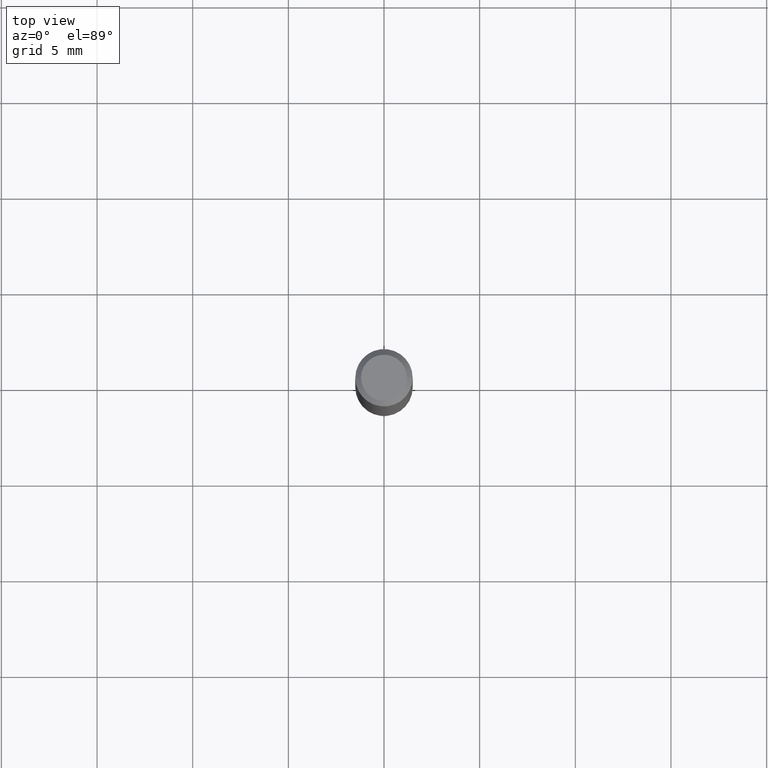
[diagram: clean part render]
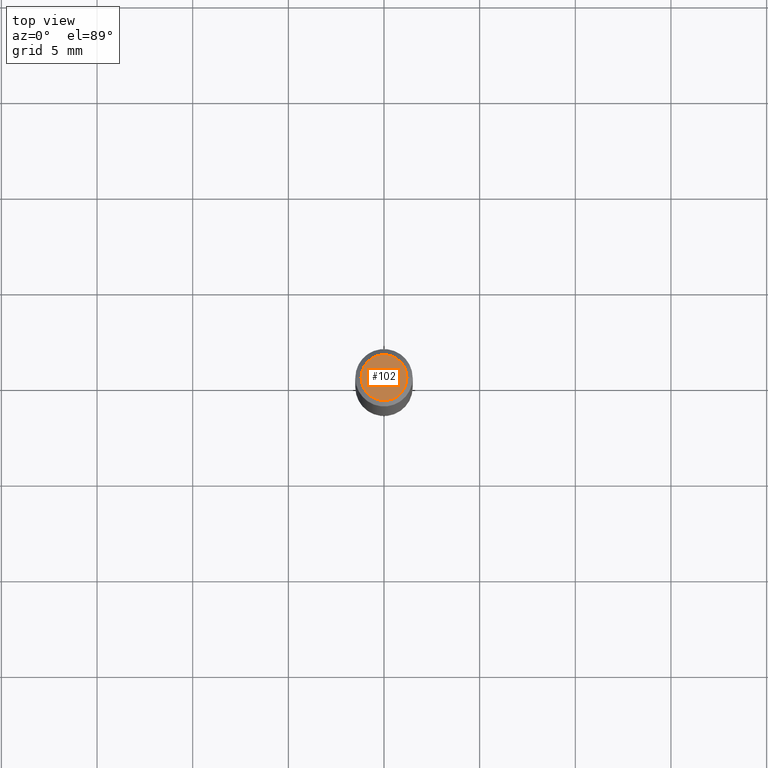
[diagram: same view with one face highlighted and labeled with its STEP entity id]
A machine part, top view. The second image highlights one B-rep face of the part: STEP entity #102.
In plain terms, the highlighted planar face has unit normal (0, -0, -1).
Its self-contained STEP definition (entity closure, byte-faithful):
#24 = CARTESIAN_POINT ( 'NONE',  ( 0.04724000000000000421, -3.852183633974369345E-16, -3.380025165621689721E-19 ) ) ;
#33 = DIRECTION ( 'NONE',  ( 1.000000000000000000, -6.982962677686266711E-15, 4.876185090822587894E-29 ) ) ;
#35 = DIRECTION ( 'NONE',  ( 1.000000000000000000, -6.982962677686266711E-15, 4.876185090822587894E-29 ) ) ;
#38 = CARTESIAN_POINT ( 'NONE',  ( 8.265746106709734507E-48, -1.180129479067563789E-33, -3.380025165646692144E-19 ) ) ;
#40 = CARTESIAN_POINT ( 'NONE',  ( 4.132873053354867254E-48, -5.900647395337818946E-34, -1.690012582823346072E-19 ) ) ;
#70 = CARTESIAN_POINT ( 'NONE',  ( 8.265746106709734507E-48, -1.180129479067563789E-33, -3.380025165646692144E-19 ) ) ;
#78 = EDGE_LOOP ( 'NONE', ( #472, #307 ) ) ;
#102 = ADVANCED_FACE ( 'NONE', ( #361 ), #204, .F. ) ;
#144 = AXIS2_PLACEMENT_3D ( 'NONE', #40, #171, #330 ) ;
#171 = DIRECTION ( 'NONE',  ( 2.438088387897960049E-29, -3.491481338843145188E-15, -1.000000000000000000 ) ) ;
#188 = VERTEX_POINT ( 'NONE', #24 ) ;
#204 = PLANE ( 'NONE',  #144 ) ;
#214 = VERTEX_POINT ( 'NONE', #293 ) ;
#221 = DIRECTION ( 'NONE',  ( -2.445468806185136597E-29, 3.491481338843145583E-15, 1.000000000000000000 ) ) ;
#265 = CIRCLE ( 'NONE', #453, 0.04724000000000000421 ) ;
#282 = EDGE_CURVE ( 'NONE', #188, #214, #265, .T. ) ;
#293 = CARTESIAN_POINT ( 'NONE',  ( -0.04724000000000000421, 3.504923541997677355E-16, -3.380025165670481712E-19 ) ) ;
#307 = ORIENTED_EDGE ( 'NONE', *, *, #282, .T. ) ;
#312 = DIRECTION ( 'NONE',  ( -2.445468806185136597E-29, 3.491481338843145583E-15, 1.000000000000000000 ) ) ;
#330 = DIRECTION ( 'NONE',  ( -1.000000000000000000, 6.982962677686265922E-15, -4.876176775795935793E-29 ) ) ;
#361 = FACE_OUTER_BOUND ( 'NONE', #78, .T. ) ;
#415 = CIRCLE ( 'NONE', #430, 0.04724000000000000421 ) ;
#416 = EDGE_CURVE ( 'NONE', #214, #188, #415, .T. ) ;
#430 = AXIS2_PLACEMENT_3D ( 'NONE', #70, #221, #35 ) ;
#453 = AXIS2_PLACEMENT_3D ( 'NONE', #38, #312, #33 ) ;
#472 = ORIENTED_EDGE ( 'NONE', *, *, #416, .T. ) ;